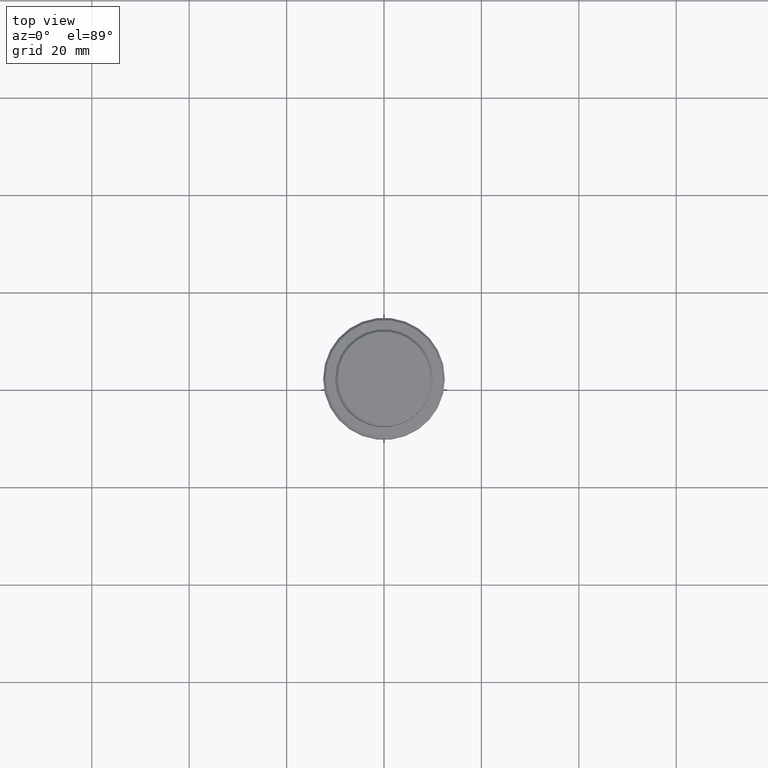
[diagram: clean part render]
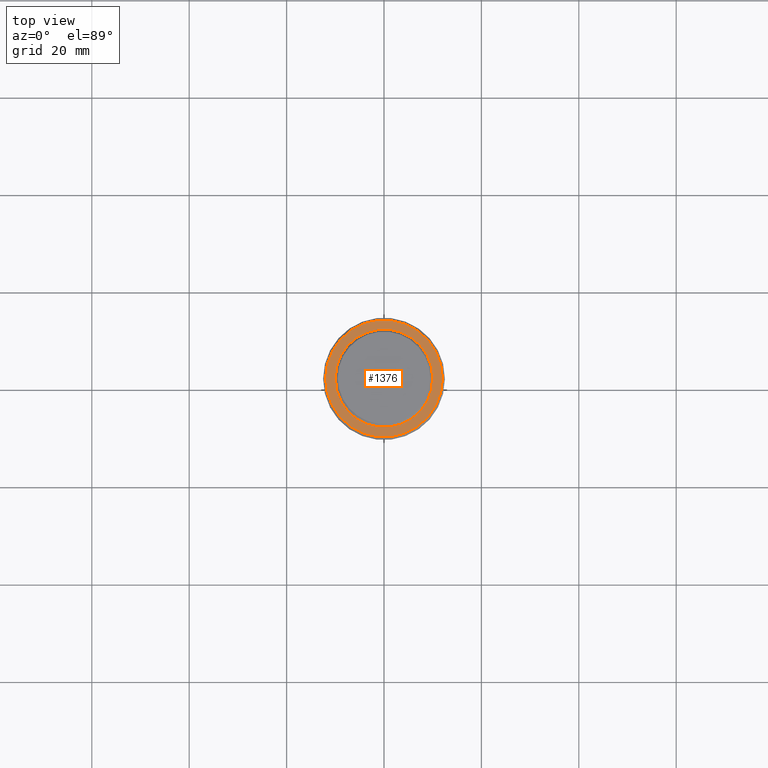
[diagram: same view with one face highlighted and labeled with its STEP entity id]
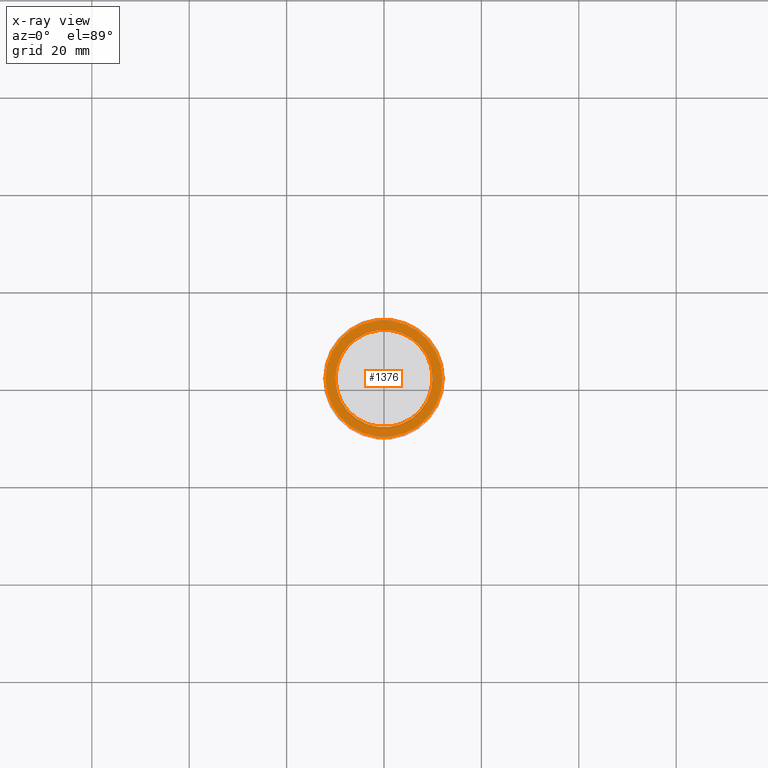
[diagram: x-ray of the same camera — body ghosted, the highlighted face saturated]
A machine part, top view. The second image highlights one B-rep face of the part: STEP entity #1376.
The next image is the same camera in x-ray: the body ghosted, the highlighted face saturated — about 0% of this face is hidden behind the body in this view.
In plain terms, the highlighted planar face has unit normal (0, -0, 1).
Its self-contained STEP definition (entity closure, byte-faithful):
#19 = EDGE_CURVE ( 'NONE', #390, #482, #394, .T. ) ;
#70 = AXIS2_PLACEMENT_3D ( 'NONE', #594, #1228, #686 ) ;
#71 = DIRECTION ( 'NONE',  ( -0.000000000000000000, -0.000000000000000000, 1.000000000000000000 ) ) ;
#123 = CARTESIAN_POINT ( 'NONE',  ( 0.000000000000000000, 0.000000000000000000, -9.000000000000001776 ) ) ;
#156 = EDGE_CURVE ( 'NONE', #482, #390, #1379, .T. ) ;
#162 = DIRECTION ( 'NONE',  ( 0.000000000000000000, -0.000000000000000000, 1.000000000000000000 ) ) ;
#237 = CARTESIAN_POINT ( 'NONE',  ( -9.999999999999994671, 1.224646799147352665E-15, -9.000000000000001776 ) ) ;
#249 = EDGE_CURVE ( 'NONE', #880, #620, #1330, .T. ) ;
#272 = EDGE_CURVE ( 'NONE', #620, #880, #1076, .T. ) ;
#343 = DIRECTION ( 'NONE',  ( 0.000000000000000000, 0.000000000000000000, -1.000000000000000000 ) ) ;
#390 = VERTEX_POINT ( 'NONE', #237 ) ;
#394 = CIRCLE ( 'NONE', #1006, 9.999999999999994671 ) ;
#395 = DIRECTION ( 'NONE',  ( 1.000000000000000000, 0.000000000000000000, 0.000000000000000000 ) ) ;
#482 = VERTEX_POINT ( 'NONE', #1133 ) ;
#501 = EDGE_LOOP ( 'NONE', ( #559, #1351 ) ) ;
#559 = ORIENTED_EDGE ( 'NONE', *, *, #156, .T. ) ;
#582 = AXIS2_PLACEMENT_3D ( 'NONE', #1169, #162, #395 ) ;
#594 = CARTESIAN_POINT ( 'NONE',  ( 0.000000000000000000, 0.000000000000000000, -9.000000000000001776 ) ) ;
#606 = AXIS2_PLACEMENT_3D ( 'NONE', #123, #343, #666 ) ;
#620 = VERTEX_POINT ( 'NONE', #647 ) ;
#647 = CARTESIAN_POINT ( 'NONE',  ( 12.00000000000003908, 1.500192328955510101E-15, -9.000000000000001776 ) ) ;
#666 = DIRECTION ( 'NONE',  ( 1.000000000000000000, 0.000000000000000000, 0.000000000000000000 ) ) ;
#686 = DIRECTION ( 'NONE',  ( 1.000000000000000000, 0.000000000000000000, 0.000000000000000000 ) ) ;
#749 = DIRECTION ( 'NONE',  ( 1.000000000000000000, 0.000000000000000000, 0.000000000000000000 ) ) ;
#807 = FACE_OUTER_BOUND ( 'NONE', #1205, .T. ) ;
#833 = FACE_BOUND ( 'NONE', #501, .T. ) ;
#841 = CARTESIAN_POINT ( 'NONE',  ( 0.000000000000000000, 0.000000000000000000, -9.000000000000001776 ) ) ;
#880 = VERTEX_POINT ( 'NONE', #1189 ) ;
#909 = PLANE ( 'NONE',  #582 ) ;
#970 = DIRECTION ( 'NONE',  ( 1.000000000000000000, 0.000000000000000000, 0.000000000000000000 ) ) ;
#1006 = AXIS2_PLACEMENT_3D ( 'NONE', #1067, #1297, #970 ) ;
#1067 = CARTESIAN_POINT ( 'NONE',  ( 0.000000000000000000, 0.000000000000000000, -9.000000000000001776 ) ) ;
#1076 = CIRCLE ( 'NONE', #70, 12.00000000000003908 ) ;
#1133 = CARTESIAN_POINT ( 'NONE',  ( 9.999999999999994671, 0.000000000000000000, -9.000000000000001776 ) ) ;
#1169 = CARTESIAN_POINT ( 'NONE',  ( 0.000000000000000000, 9.499999999999994671, -9.000000000000001776 ) ) ;
#1171 = ORIENTED_EDGE ( 'NONE', *, *, #249, .T. ) ;
#1189 = CARTESIAN_POINT ( 'NONE',  ( -12.00000000000003908, 0.000000000000000000, -9.000000000000001776 ) ) ;
#1205 = EDGE_LOOP ( 'NONE', ( #1171, #1381 ) ) ;
#1228 = DIRECTION ( 'NONE',  ( -0.000000000000000000, -0.000000000000000000, 1.000000000000000000 ) ) ;
#1297 = DIRECTION ( 'NONE',  ( 0.000000000000000000, 0.000000000000000000, -1.000000000000000000 ) ) ;
#1309 = AXIS2_PLACEMENT_3D ( 'NONE', #841, #71, #749 ) ;
#1330 = CIRCLE ( 'NONE', #1309, 12.00000000000003908 ) ;
#1351 = ORIENTED_EDGE ( 'NONE', *, *, #19, .T. ) ;
#1376 = ADVANCED_FACE ( 'NONE', ( #807, #833 ), #909, .T. ) ;
#1379 = CIRCLE ( 'NONE', #606, 9.999999999999994671 ) ;
#1381 = ORIENTED_EDGE ( 'NONE', *, *, #272, .T. ) ;